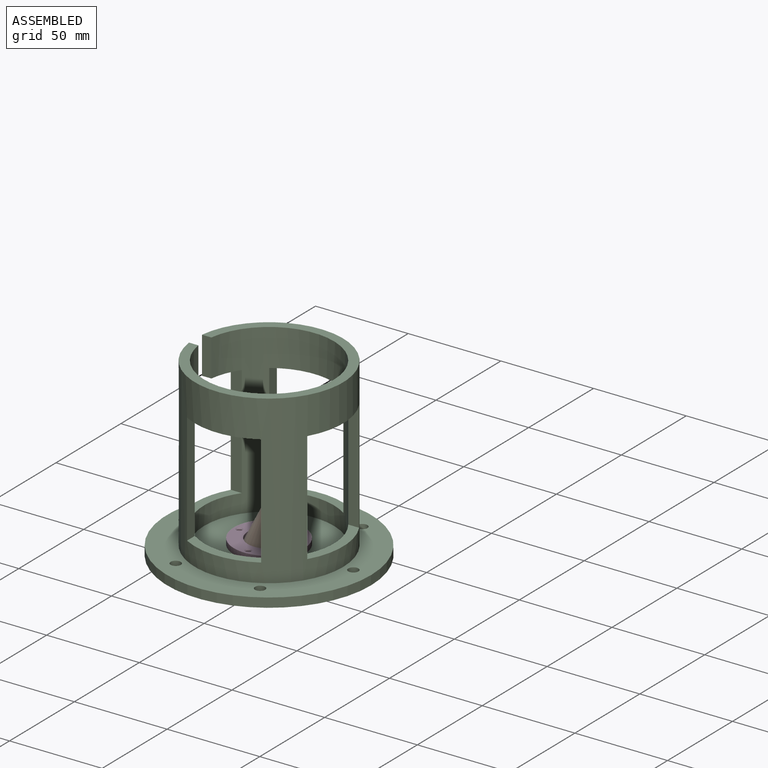
[diagram: assembled view]
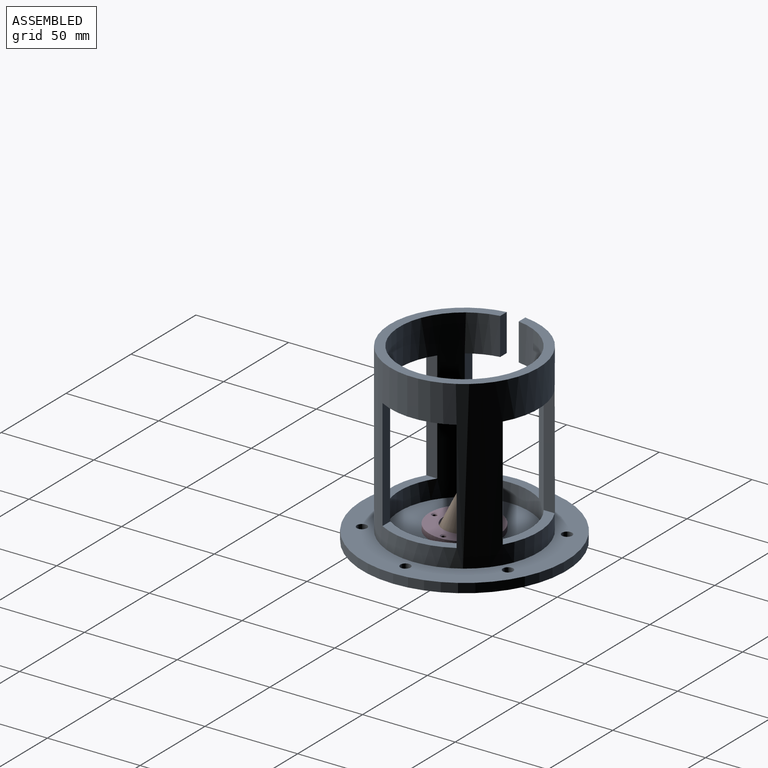
[diagram: assembled view, second angle]
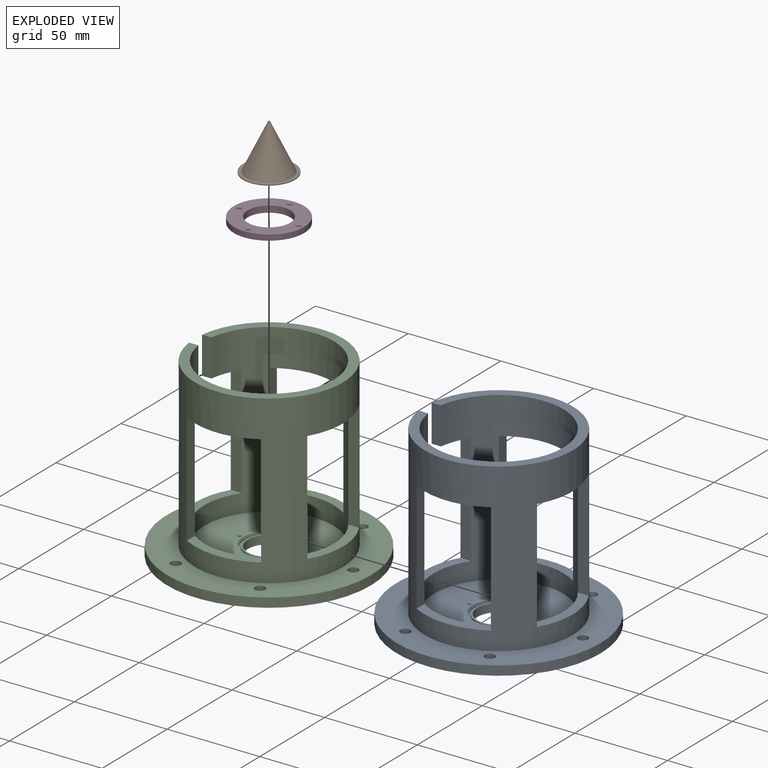
[diagram: exploded view]
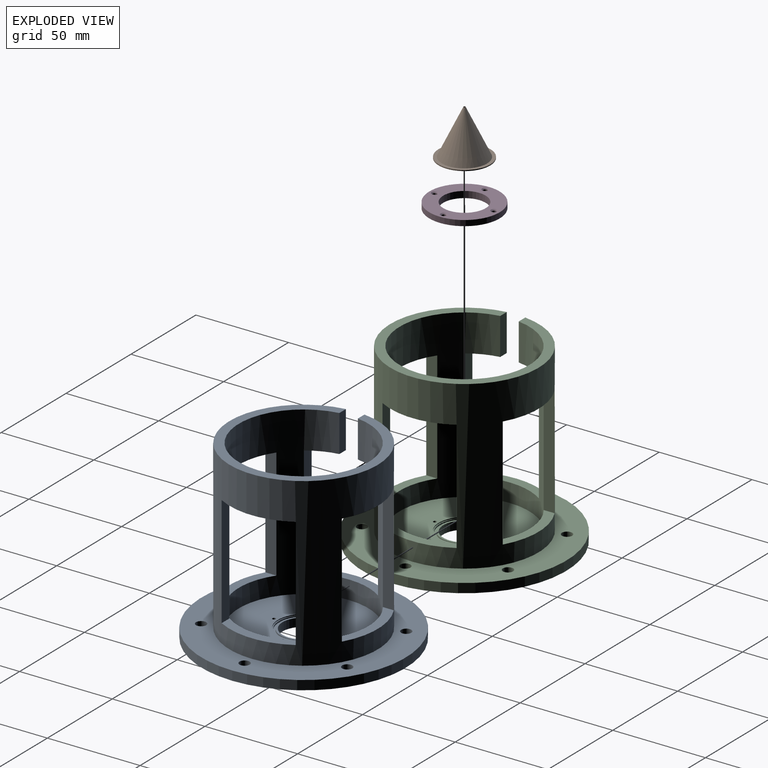
[diagram: exploded view, second angle]
ASSEMBLY  parts=4 mates=2
PART A: 47 faces, bbox 110x110x95 mm
  f0: plane 25x25mm, normal (0,0,1), area 79mm2, adj f35,f36
  f1: cylinder r=35mm len=90mm, axis (0,0,-1), area 9372.8mm2, adj f2,f3,f14,f15,f16,f17,f18,f19
  f2: plane 80x79.69mm, normal (0,0,1), area 1127.9mm2, adj f1,f4,f31,f32
  f3: plane 15x10.96mm, normal (0,0,-1), area 80.4mm2, adj f1,f4,f22,f32
  f4: cylinder r=40mm len=90mm, axis (0,0,-1), area 12365.8mm2, adj f2,f3,f6,f15,f16,f17,f18,f19
  f5: cylinder r=55mm len=110mm, axis (0,0,-1), area 1727.9mm2, adj f6,f7
  f6: plane 110x110mm, normal (0,0,1), area 4334.2mm2, adj f4,f5,f8,f9,f10,f11,f12,f13
  f7: plane 110x110mm, normal (0,0,-1), area 8948.9mm2, adj f5,f8,f9,f10,f11,f12,f13,f35
  f8: cylinder r=2.75mm len=5.5mm, axis (0,0,1), area 86.4mm2, adj f6,f7
  f9: cylinder r=2.75mm len=5.5mm, axis (0,0,1), area 86.4mm2, adj f6,f7
  f10: cylinder r=2.75mm len=5.5mm, axis (0,0,1), area 86.4mm2, adj f6,f7
  f11: cylinder r=2.75mm len=5.5mm, axis (0,0,1), area 86.4mm2, adj f6,f7
  f12: cylinder r=2.75mm len=5.5mm, axis (0,0,1), area 86.4mm2, adj f6,f7
  f13: cylinder r=2.75mm len=5.5mm, axis (0,0,1), area 86.4mm2, adj f6,f7
  f14: plane 70x70mm, normal (0,0,1), area 3227.5mm2, adj f1,f33,f40,f42,f44,f46
  f15: plane 40x11.28mm, normal (0,0,-1), area 211mm2, adj f1,f4,f16,f18
  f16: plane 60x5.92mm, normal (1,0,0), area 355.1mm2, adj f1,f4,f15,f17
  f17: plane 40x11.28mm, normal (0,0,1), area 211mm2, adj f1,f4,f16,f18
  f18: plane 60x5.92mm, normal (-1,0,0), area 355.1mm2, adj f1,f4,f15,f17
  f19: plane 15x10.96mm, normal (0,0,-1), area 80.4mm2, adj f1,f4,f20,f31
  f20: plane 60x5.92mm, normal (0,1,0), area 355.1mm2, adj f1,f4,f19,f21
  f21: plane 40x11.28mm, normal (0,0,1), area 211mm2, adj f1,f4,f20,f22
  f22: plane 60x5.92mm, normal (0,-1,0), area 355.1mm2, adj f1,f3,f4,f21
  f23: plane 40x11.28mm, normal (0,0,-1), area 211mm2, adj f1,f4,f24,f26
  f24: plane 60x5.92mm, normal (-1,0,0), area 355.1mm2, adj f1,f4,f23,f25
  f25: plane 40x11.28mm, normal (0,0,1), area 211mm2, adj f1,f4,f24,f26
  f26: plane 60x5.92mm, normal (1,0,0), area 355.1mm2, adj f1,f4,f23,f25
  f27: plane 40x11.28mm, normal (0,0,-1), area 211mm2, adj f1,f4,f28,f30
  f28: plane 60x5.92mm, normal (0,-1,0), area 355.1mm2, adj f1,f4,f27,f29
  f29: plane 40x11.28mm, normal (0,0,1), area 211mm2, adj f1,f4,f28,f30
  f30: plane 60x5.92mm, normal (0,1,0), area 355.1mm2, adj f1,f4,f27,f29
  f31: plane 20x5.05mm, normal (0,1,0), area 100.9mm2, adj f1,f2,f4,f19
  f32: plane 20x5.05mm, normal (0,-1,0), area 100.9mm2, adj f1,f2,f3,f4
  f33: cylinder r=13.95mm len=27.9mm, axis (0,0,1), area 43.8mm2, adj f14,f34
  f34: plane 27.9x27.9mm, normal (0,0,1), area 38.8mm2, adj f33,f37
  f35: cylinder r=11.45mm len=22.9mm, axis (0,0,1), area 323.7mm2, adj f0,f7
  f36: cylinder r=12.5mm len=25mm, axis (0,0,1), area 62.8mm2, adj f0,f38
  f37: cylinder r=13.5mm len=27mm, axis (0,0,1), area 67.9mm2, adj f34,f38
  f38: plane 27x27mm, normal (0,0,1), area 81.7mm2, adj f36,f37
  f39: cone r=0mm half-angle=59deg, axis (0,0,1), area 2.8mm2, adj f40
  f40: cylinder r=0.88mm len=2mm, axis (0,0,1), area 11mm2, adj f14,f39
  f41: cone r=0mm half-angle=59deg, axis (0,0,1), area 2.8mm2, adj f42
  f42: cylinder r=0.88mm len=2mm, axis (0,0,1), area 11mm2, adj f14,f41
  f43: cone r=0mm half-angle=59deg, axis (0,0,1), area 2.8mm2, adj f44
  f44: cylinder r=0.88mm len=2mm, axis (0,0,1), area 11mm2, adj f14,f43
  f45: cone r=0mm half-angle=59deg, axis (0,0,1), area 2.8mm2, adj f46
  f46: cylinder r=0.88mm len=2mm, axis (0,0,1), area 11mm2, adj f14,f45
PART B: 6 faces, bbox 27.9x27.9x24.9 mm
  f0: cylinder r=13.95mm len=27.9mm, axis (0,0,-1), area 43.8mm2, adj f1,f2
  f1: plane 27.9x27.9mm, normal (0,0,1), area 166.2mm2, adj f0,f4
  f2: plane 27.9x27.9mm, normal (0,0,-1), area 142.4mm2, adj f0,f3
  f3: cone r=12.22mm half-angle=25.7deg, axis (0,0,1), area 1080mm2, adj f2,f5
  f4: cone r=11.77mm half-angle=25.7deg, axis (0,0,1), area 1025.1mm2, adj f1,f5
  f5: cylinder r=0.5mm len=1.15mm, axis (0,0,-1), area 3.6mm2, adj f3,f4
PART C: same geometry as A
PART D: 14 faces, bbox 38x38x3.5 mm
  f0: cylinder r=19mm len=38mm, axis (0,0,-1), area 358.1mm2, adj f1,f2
  f1: plane 38x38mm, normal (0,0,1), area 504.7mm2, adj f0,f4,f6,f8,f10,f12
  f2: plane 38x38mm, normal (0,0,-1), area 683.8mm2, adj f0,f3,f7,f9,f11,f13
  f3: cylinder r=11.45mm len=22.9mm, axis (0,0,-1), area 251.8mm2, adj f2,f5
  f4: cylinder r=13.95mm len=27.9mm, axis (0,0,-1), area 43.8mm2, adj f1,f5
  f5: plane 27.9x27.9mm, normal (0,0,1), area 199.5mm2, adj f3,f4
  f6: cylinder r=1.2mm len=2.45mm, axis (0,0,-1), area 18.5mm2, adj f1,f7
  f7: cone r=1.2mm half-angle=45deg, axis (0,0,-1), area 7.2mm2, adj f2,f6
  f8: cylinder r=1.2mm len=2.45mm, axis (0,0,-1), area 18.5mm2, adj f1,f9
  f9: cone r=1.2mm half-angle=45deg, axis (0,0,-1), area 7.2mm2, adj f2,f8
  f10: cylinder r=1.2mm len=2.45mm, axis (0,0,-1), area 18.5mm2, adj f1,f11
  f11: cone r=1.2mm half-angle=45deg, axis (0,0,-1), area 7.2mm2, adj f2,f10
  f12: cylinder r=1.2mm len=2.45mm, axis (0,0,-1), area 18.5mm2, adj f1,f13
  f13: cone r=1.2mm half-angle=45deg, axis (0,0,-1), area 7.2mm2, adj f2,f12
PLACE A at identity
PLACE B rot(axis=(0.71,-0.71,0),180deg) t=(0,0,5)mm
PLACE C at identity
PLACE D rot(axis=(1,0,0),180deg) t=(0,0,8.5)mm
MATE planar B.f0 <-> C.f5  axis (0,0,-1) through (0,0,4.5)mm
MATE planar D.f0 <-> C.f4  axis (0,0,-1) through (0,0,5)mm
